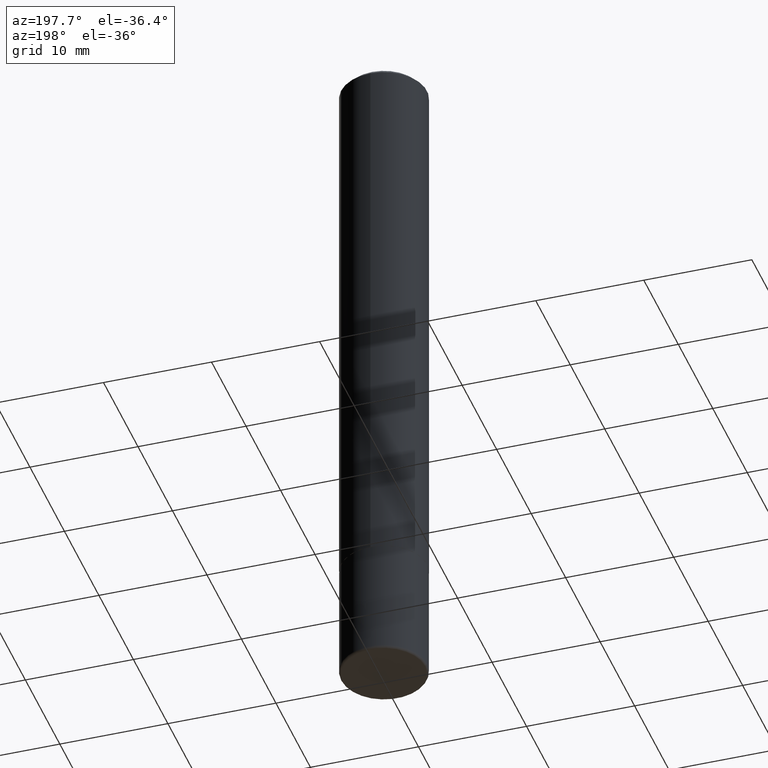
[diagram: clean part render]
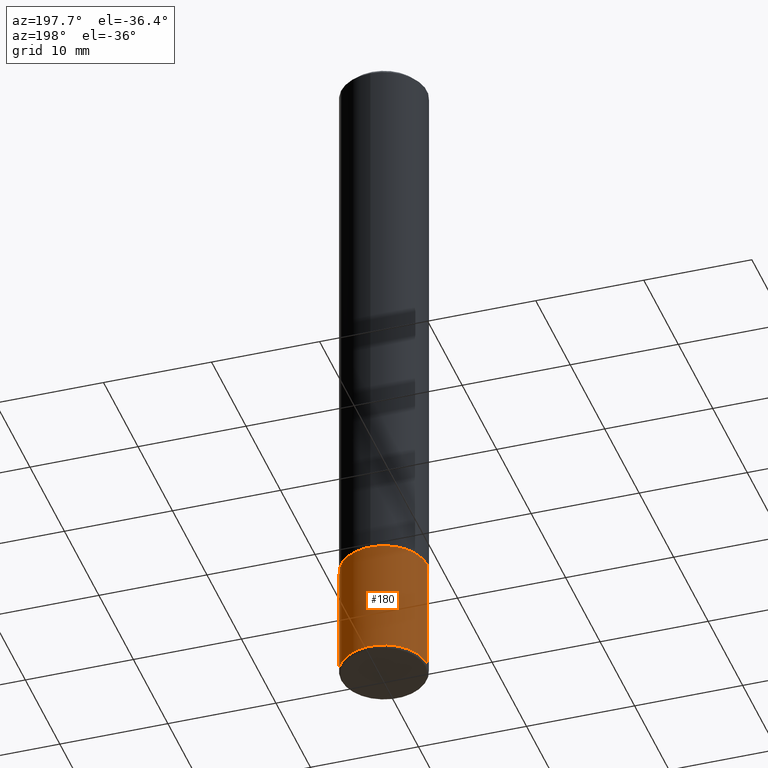
[diagram: same view with one face highlighted and labeled with its STEP entity id]
A machine part, auxiliary view. The second image highlights one B-rep face of the part: STEP entity #180.
In plain terms, the highlighted cylindrical surface (partial cylindrical patch) has radius 3.9688 mm, axis along (-0, 0, 1).
Its self-contained STEP definition (entity closure, byte-faithful):
#6 = DIRECTION ( 'NONE',  ( -2.445468806185136597E-29, 3.491481338843145583E-15, 1.000000000000000000 ) ) ;
#10 = VECTOR ( 'NONE', #58, 39.37007874015748143 ) ;
#29 = CARTESIAN_POINT ( 'NONE',  ( 0.1562500000000000000, -1.091087918388479174E-15, 7.619026212181150377E-30 ) ) ;
#43 = CARTESIAN_POINT ( 'NONE',  ( -0.1562499999999999167, -7.583565509094276753E-15, -2.489999999999999769 ) ) ;
#45 = AXIS2_PLACEMENT_3D ( 'NONE', #172, #399, #103 ) ;
#47 = VERTEX_POINT ( 'NONE', #43 ) ;
#51 = CIRCLE ( 'NONE', #168, 0.1562500000000000000 ) ;
#52 = VERTEX_POINT ( 'NONE', #392 ) ;
#58 = DIRECTION ( 'NONE',  ( -2.445468806185136877E-29, 3.491481338843145188E-15, 1.000000000000000000 ) ) ;
#62 = CARTESIAN_POINT ( 'NONE',  ( 0.1562499999999999167, -9.784876452107911678E-15, -2.489999999999999769 ) ) ;
#64 = CARTESIAN_POINT ( 'NONE',  ( -0.1562500000000000000, -6.837261372916553606E-15, -2.062500000000000000 ) ) ;
#87 = DIRECTION ( 'NONE',  ( -2.445468806185136877E-29, 3.491481338843145188E-15, 1.000000000000000000 ) ) ;
#94 = LINE ( 'NONE', #411, #10 ) ;
#98 = DIRECTION ( 'NONE',  ( 1.000000000000000000, -6.982962677686269077E-15, 0.000000000000000000 ) ) ;
#103 = DIRECTION ( 'NONE',  ( 1.000000000000000000, -6.982962677686266711E-15, 4.876176775795936353E-29 ) ) ;
#107 = EDGE_CURVE ( 'NONE', #246, #52, #122, .T. ) ;
#122 = LINE ( 'NONE', #29, #178 ) ;
#168 = AXIS2_PLACEMENT_3D ( 'NONE', #171, #6, #263 ) ;
#171 = CARTESIAN_POINT ( 'NONE',  ( 6.089217327400989947E-29, -8.693788533719431716E-15, -2.489999999999999769 ) ) ;
#172 = CARTESIAN_POINT ( 'NONE',  ( 0.000000000000000000, 0.000000000000000000, 0.000000000000000000 ) ) ;
#178 = VECTOR ( 'NONE', #87, 39.37007874015748143 ) ;
#179 = ORIENTED_EDGE ( 'NONE', *, *, #245, .T. ) ;
#180 = ADVANCED_FACE ( 'NONE', ( #297 ), #391, .T. ) ;
#192 = ORIENTED_EDGE ( 'NONE', *, *, #107, .F. ) ;
#219 = AXIS2_PLACEMENT_3D ( 'NONE', #270, #396, #98 ) ;
#232 = EDGE_LOOP ( 'NONE', ( #179, #280, #344, #192 ) ) ;
#245 = EDGE_CURVE ( 'NONE', #246, #47, #51, .T. ) ;
#246 = VERTEX_POINT ( 'NONE', #62 ) ;
#247 = EDGE_CURVE ( 'NONE', #52, #395, #302, .T. ) ;
#263 = DIRECTION ( 'NONE',  ( 1.000000000000000000, -6.982962677686269077E-15, 0.000000000000000000 ) ) ;
#270 = CARTESIAN_POINT ( 'NONE',  ( 5.043779412756844791E-29, -7.201180261363988578E-15, -2.062500000000000000 ) ) ;
#280 = ORIENTED_EDGE ( 'NONE', *, *, #319, .T. ) ;
#297 = FACE_OUTER_BOUND ( 'NONE', #232, .T. ) ;
#302 = CIRCLE ( 'NONE', #219, 0.1562500000000000000 ) ;
#319 = EDGE_CURVE ( 'NONE', #47, #395, #94, .T. ) ;
#344 = ORIENTED_EDGE ( 'NONE', *, *, #247, .F. ) ;
#391 = CYLINDRICAL_SURFACE ( 'NONE', #45, 0.1562500000000000000 ) ;
#392 = CARTESIAN_POINT ( 'NONE',  ( 0.1562500000000000000, -8.292268179752468540E-15, -2.062500000000000000 ) ) ;
#395 = VERTEX_POINT ( 'NONE', #64 ) ;
#396 = DIRECTION ( 'NONE',  ( -2.445468806185136597E-29, 3.491481338843145583E-15, 1.000000000000000000 ) ) ;
#399 = DIRECTION ( 'NONE',  ( -2.445468806185136597E-29, 3.491481338843145583E-15, 1.000000000000000000 ) ) ;
#411 = CARTESIAN_POINT ( 'NONE',  ( -0.1562500000000000000, 1.110223024625156540E-15, -7.685836078523291160E-30 ) ) ;